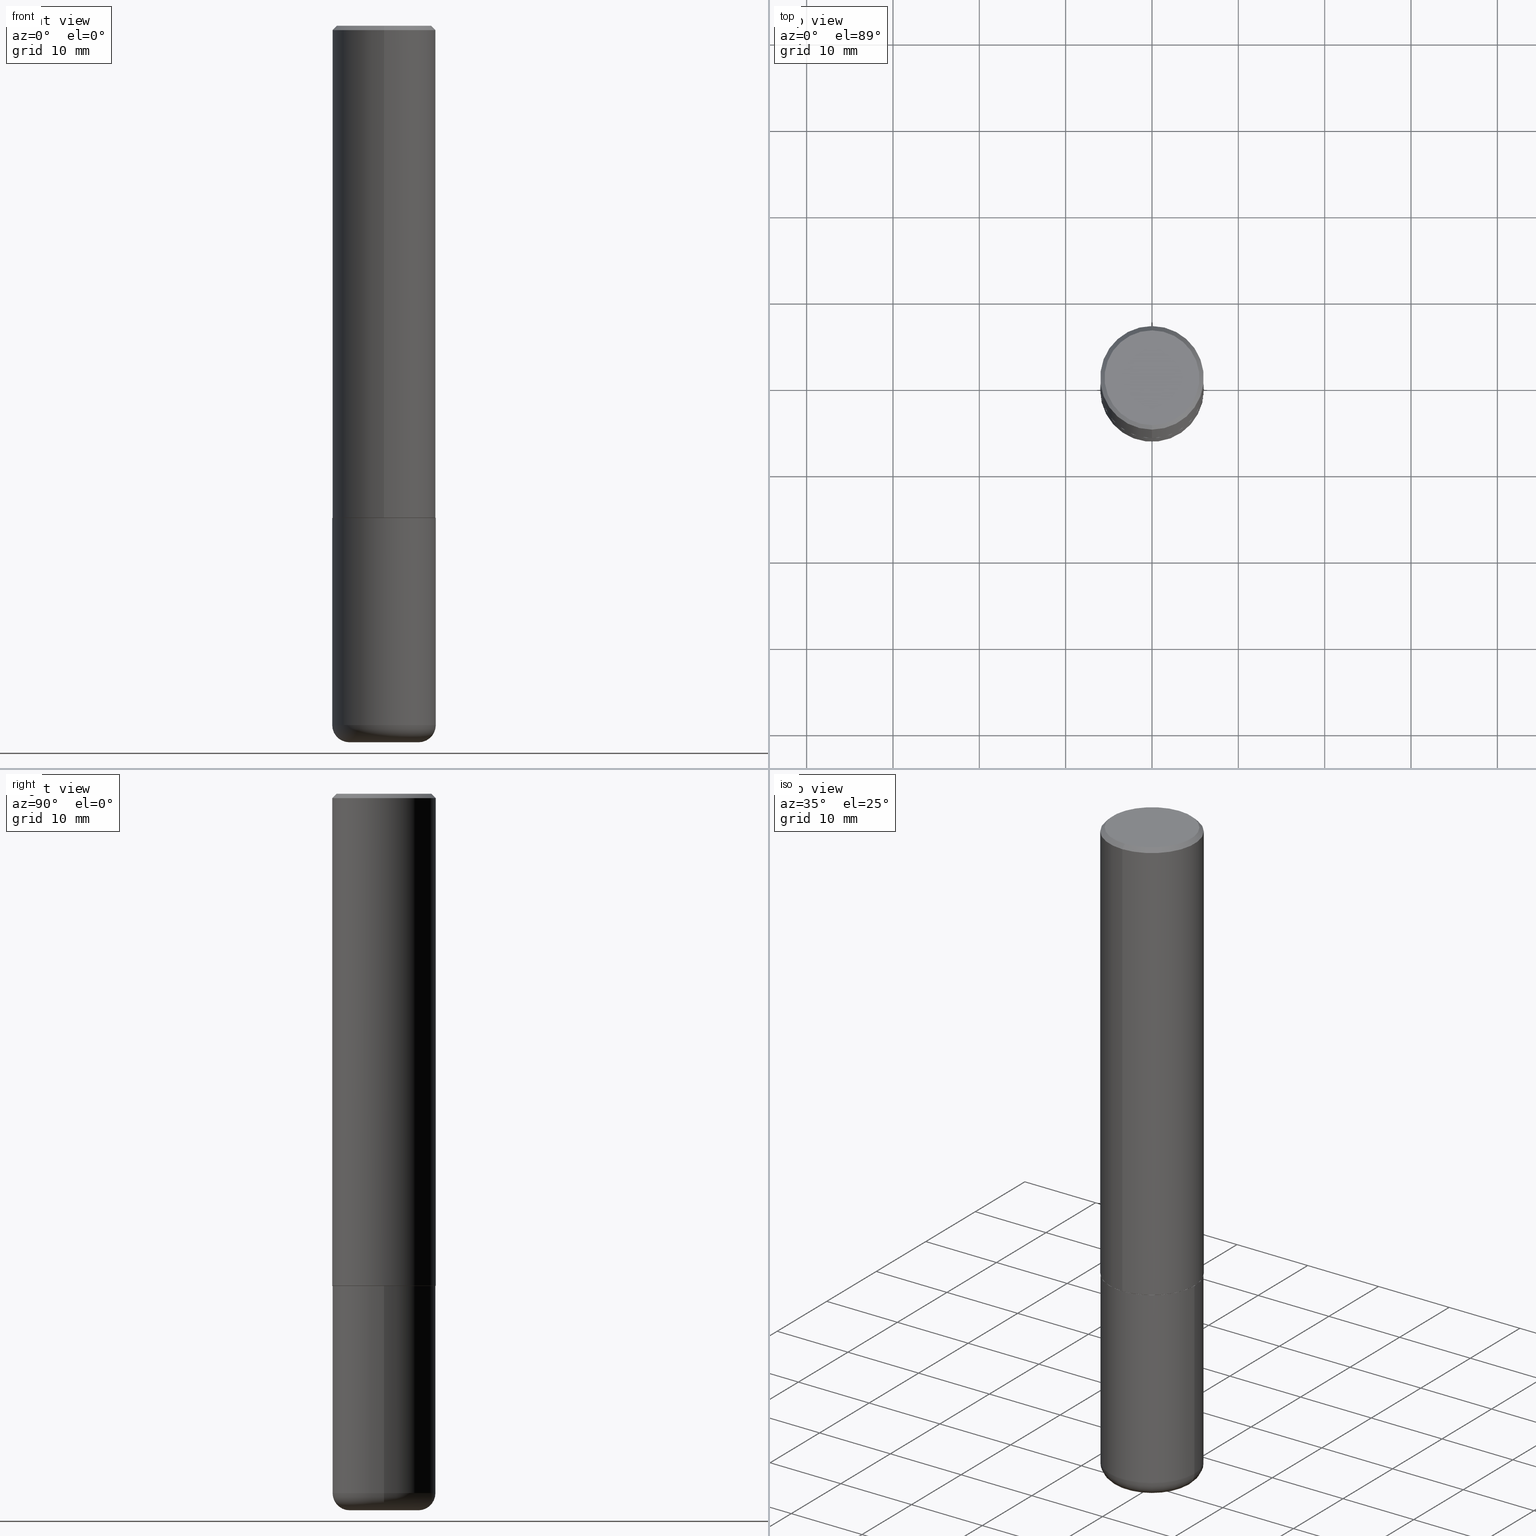
[diagram: canonical four-view strip — front | top / right | iso, engineering-drawing reading convention]
A machine part, canonical four-view strip (front | top / right | iso — engineering-drawing reading convention). The complete STEP part file that produces these views, byte-faithful:
ISO-10303-21;
HEADER;
FILE_DESCRIPTION (( 'STEP AP203' ),
    '1' );
FILE_NAME ('47168.STEP',
    '2024-03-06T00:59:04',
    ( '' ),
    ( '' ),
    'SwSTEP 2.0',
    'SolidWorks 2023',
    '' );
FILE_SCHEMA (( 'CONFIG_CONTROL_DESIGN' ));
ENDSEC;

DATA;
#1 = CARTESIAN_POINT ( 'NONE',  ( -1.649375784469443080E-15, -0.2362000000000081257, -2.243099999999999206 ) ) ;
#2 = APPROVAL_DATE_TIME ( #292, #88 ) ;
#3 = DIRECTION ( 'NONE',  ( -6.982962677686265922E-15, -1.000000000000000000, 3.484499991918702719E-15 ) ) ;
#4 = APPROVAL_STATUS ( 'not_yet_approved' ) ;
#5 = CIRCLE ( 'NONE', #396, 0.07870000000000021423 ) ;
#6 = CARTESIAN_POINT ( 'NONE',  ( 0.2362000000000001043, -1.278370977404028805E-14, -3.189000000000000501 ) ) ;
#7 = ADVANCED_FACE ( 'NONE', ( #27 ), #319, .T. ) ;
#8 = DIRECTION ( 'NONE',  ( -6.982962677686265922E-15, -1.000000000000000000, 3.494732472144603410E-15 ) ) ;
#9 = UNCERTAINTY_MEASURE_WITH_UNIT (LENGTH_MEASURE( 1.000000000000000082E-05 ), #128, 'distance_accuracy_value', 'NONE');
#10 = CARTESIAN_POINT ( 'NONE',  ( 7.798600022924401307E-29, -1.113433398957079310E-14, -3.189000000000000501 ) ) ;
#11 = CLOSED_SHELL ( 'NONE', ( #34, #198, #164, #334, #170, #318 ) ) ;
#12 = FACE_OUTER_BOUND ( 'NONE', #316, .T. ) ;
#13 = DIRECTION ( 'NONE',  ( -2.443198551934710321E-29, 3.494732472144603410E-15, 1.000000000000000000 ) ) ;
#14 = ORIENTED_EDGE ( 'NONE', *, *, #363, .F. ) ;
#15 = CARTESIAN_POINT ( 'NONE',  ( 7.798600022924401307E-29, -1.113433398957079310E-14, -3.189000000000000501 ) ) ;
#16 = CARTESIAN_POINT ( 'NONE',  ( 7.991058417971172834E-29, -1.140911357093774960E-14, -3.267700000000000937 ) ) ;
#17 = EDGE_CURVE ( 'NONE', #216, #379, #145, .T. ) ;
#18 = CIRCLE ( 'NONE', #352, 0.1575000000000000011 ) ;
#19 = CONICAL_SURFACE ( 'NONE', #127, 0.2361999999999999933, 0.7853981633974463916 ) ;
#20 = DIRECTION ( 'NONE',  ( -2.443198551934710321E-29, 3.494732472144603410E-15, 1.000000000000000000 ) ) ;
#21 = CARTESIAN_POINT ( 'NONE',  ( -1.551844647095920733E-15, -0.2162000000000002808, 4.617366936805109079E-16 ) ) ;
#22 = EDGE_LOOP ( 'NONE', ( #107, #225, #24, #414 ) ) ;
#23 = DIRECTION ( 'NONE',  ( 2.443198551934710321E-29, -3.494732472144603016E-15, -1.000000000000000000 ) ) ;
#24 = ORIENTED_EDGE ( 'NONE', *, *, #138, .T. ) ;
#25 = AXIS2_PLACEMENT_3D ( 'NONE', #298, #360, #137 ) ;
#26 = DESIGN_CONTEXT ( 'detailed design', #407, 'design' ) ;
#27 = FACE_OUTER_BOUND ( 'NONE', #163, .T. ) ;
#28 = DIRECTION ( 'NONE',  ( -2.443198551934710321E-29, 3.494732472144603016E-15, 1.000000000000000000 ) ) ;
#29 = PRODUCT ( '47168', '47168', '', ( #309 ) ) ;
#30 = ORIENTED_EDGE ( 'NONE', *, *, #418, .F. ) ;
#31 = LINE ( 'NONE', #284, #376 ) ;
#32 = ADVANCED_BREP_SHAPE_REPRESENTATION ( '47168', ( #344, #204, #44 ), #342 ) ;
#33 = VERTEX_POINT ( 'NONE', #291 ) ;
#34 = ADVANCED_FACE ( 'NONE', ( #98 ), #203, .T. ) ;
#35 = AXIS2_PLACEMENT_3D ( 'NONE', #16, #308, #302 ) ;
#36 = ORIENTED_EDGE ( 'NONE', *, *, #242, .T. ) ;
#37 = LINE ( 'NONE', #264, #305 ) ;
#38 = PERSON_AND_ORGANIZATION ( #162, #95 ) ;
#39 = LINE ( 'NONE', #233, #415 ) ;
#40 = DIRECTION ( 'NONE',  ( -2.443198551934710321E-29, 3.494732472144603410E-15, 1.000000000000000000 ) ) ;
#41 = CARTESIAN_POINT ( 'NONE',  ( 7.798600022924401307E-29, -1.113433398957079310E-14, -3.189000000000000501 ) ) ;
#42 = CARTESIAN_POINT ( 'NONE',  ( 5.480338671844748839E-29, -7.839034408267561952E-15, -2.243100000000000094 ) ) ;
#43 = CONICAL_SURFACE ( 'NONE', #260, 0.2352000000000000202, 0.7853981633975336552 ) ;
#44 = AXIS2_PLACEMENT_3D ( 'NONE', #117, #256, #347 ) ;
#45 = PLANE ( 'NONE',  #87 ) ;
#46 = CARTESIAN_POINT ( 'NONE',  ( -0.2362000000000001043, -9.456032047705438285E-15, -3.189000000000000501 ) ) ;
#47 = CARTESIAN_POINT ( 'NONE',  ( 0.000000000000000000, 0.000000000000000000, 0.000000000000000000 ) ) ;
#48 = VECTOR ( 'NONE', #131, 39.37007874015748143 ) ;
#49 = CC_DESIGN_SECURITY_CLASSIFICATION ( #255, ( #71 ) ) ;
#50 = APPLICATION_PROTOCOL_DEFINITION ( 'international standard', 'config_control_design', 1994, #388 ) ;
#51 = ORIENTED_EDGE ( 'NONE', *, *, #60, .F. ) ;
#52 = ORIENTED_EDGE ( 'NONE', *, *, #249, .T. ) ;
#53 = CC_DESIGN_PERSON_AND_ORGANIZATION_ASSIGNMENT ( #38, #202, ( #71 ) ) ;
#54 = FACE_OUTER_BOUND ( 'NONE', #121, .T. ) ;
#55 = VERTEX_POINT ( 'NONE', #6 ) ;
#56 = AXIS2_PLACEMENT_3D ( 'NONE', #176, #210, #371 ) ;
#57 = CALENDAR_DATE ( 2024, 5, 3 ) ;
#58 = VERTEX_POINT ( 'NONE', #362 ) ;
#59 =( NAMED_UNIT ( * ) PLANE_ANGLE_UNIT ( ) SI_UNIT ( $, .RADIAN. ) );
#60 = EDGE_CURVE ( 'NONE', #290, #119, #37, .T. ) ;
#61 = ORIENTED_EDGE ( 'NONE', *, *, #345, .F. ) ;
#62 = DATE_TIME_ROLE ( 'classification_date' ) ;
#63 = EDGE_LOOP ( 'NONE', ( #384, #190 ) ) ;
#64 = CIRCLE ( 'NONE', #240, 0.2352000000000000202 ) ;
#65 = DIRECTION ( 'NONE',  ( -2.445468806185136597E-29, 3.491481338843145583E-15, 1.000000000000000000 ) ) ;
#66 = EDGE_CURVE ( 'NONE', #290, #55, #331, .T. ) ;
#67 = CARTESIAN_POINT ( 'NONE',  ( -1.649375784469496920E-15, -0.2362000000000001321, 8.254558099205557624E-16 ) ) ;
#68 = DIRECTION ( 'NONE',  ( -2.445468806185136877E-29, 3.491481338843145188E-15, 1.000000000000000000 ) ) ;
#69 = PERSON_AND_ORGANIZATION_ROLE ( 'classification_officer' ) ;
#70 = AXIS2_PLACEMENT_3D ( 'NONE', #258, #325, #166 ) ;
#71 = PRODUCT_DEFINITION_FORMATION_WITH_SPECIFIED_SOURCE ( 'ANY', '', #29, .NOT_KNOWN. ) ;
#72 = DIRECTION ( 'NONE',  ( -2.443198551934710321E-29, 3.494732472144603410E-15, 1.000000000000000000 ) ) ;
#73 = EDGE_CURVE ( 'NONE', #368, #250, #338, .T. ) ;
#74 = DIRECTION ( 'NONE',  ( 1.000000000000000000, -6.982962677686268288E-15, 0.000000000000000000 ) ) ;
#75 = ORIENTED_EDGE ( 'NONE', *, *, #17, .F. ) ;
#76 = DIRECTION ( 'NONE',  ( -1.000000000000000000, 7.105427357600997914E-15, 0.000000000000000000 ) ) ;
#77 = AXIS2_PLACEMENT_3D ( 'NONE', #114, #300, #211 ) ;
#78 = EDGE_CURVE ( 'NONE', #238, #119, #111, .T. ) ;
#79 = DIRECTION ( 'NONE',  ( -2.443198551934710321E-29, 3.494732472144603410E-15, 1.000000000000000000 ) ) ;
#80 = CARTESIAN_POINT ( 'NONE',  ( 1.649375784469496525E-15, 0.2361999999999999378, -0.02000000000000091288 ) ) ;
#81 = DIRECTION ( 'NONE',  ( 1.000000000000000000, -6.982962677686266711E-15, 4.883557194083113462E-29 ) ) ;
#82 = ADVANCED_FACE ( 'NONE', ( #266 ), #96, .T. ) ;
#83 = ORIENTED_EDGE ( 'NONE', *, *, #249, .F. ) ;
#84 = DIRECTION ( 'NONE',  ( 1.000000000000000000, -6.982962677686261977E-15, 0.000000000000000000 ) ) ;
#85 = ORIENTED_EDGE ( 'NONE', *, *, #259, .T. ) ;
#86 = VERTEX_POINT ( 'NONE', #1 ) ;
#87 = AXIS2_PLACEMENT_3D ( 'NONE', #113, #343, #243 ) ;
#88 = APPROVAL ( #4, 'UNSPECIFIED' ) ;
#89 = DIRECTION ( 'NONE',  ( 4.937700262164537787E-15, 0.7071067811865436870, -0.7071067811865513475 ) ) ;
#90 = EDGE_LOOP ( 'NONE', ( #61, #75, #193, #406 ) ) ;
#91 = CARTESIAN_POINT ( 'NONE',  ( 4.886397103869442398E-31, -6.989464944289237832E-17, -0.02000000000000009062 ) ) ;
#92 = ORIENTED_EDGE ( 'NONE', *, *, #60, .T. ) ;
#93 = DIRECTION ( 'NONE',  ( -2.445468806185136877E-29, 3.491481338843145188E-15, 1.000000000000000000 ) ) ;
#94 = AXIS2_PLACEMENT_3D ( 'NONE', #270, #181, #74 ) ;
#95 = ORGANIZATION ( 'UNSPECIFIED', 'UNSPECIFIED', '' ) ;
#96 = CYLINDRICAL_SURFACE ( 'NONE', #25, 0.2362000000000001321 ) ;
#97 = PRODUCT_RELATED_PRODUCT_CATEGORY ( 'detail', '', ( #29 ) ) ;
#98 = FACE_OUTER_BOUND ( 'NONE', #218, .T. ) ;
#99 = PERSON_AND_ORGANIZATION ( #162, #95 ) ;
#100 = DIRECTION ( 'NONE',  ( -2.445468806185136597E-29, 3.491481338843145583E-15, 1.000000000000000000 ) ) ;
#101 = DIMENSIONAL_EXPONENTS ( 1.000000000000000000, 0.000000000000000000, 0.000000000000000000, 0.000000000000000000, 0.000000000000000000, 0.000000000000000000, 0.000000000000000000 ) ;
#102 = EDGE_CURVE ( 'NONE', #285, #86, #335, .T. ) ;
#103 = TOROIDAL_SURFACE ( 'NONE', #174, 0.1575000000000000011, 0.07870000000000022811 ) ;
#104 = LOCAL_TIME ( 19, 59, 4.000000000000000000, #389 ) ;
#105 = CARTESIAN_POINT ( 'NONE',  ( -0.2362000000000000766, -7.806481689168991326E-15, -2.244100000000000428 ) ) ;
#106 = CARTESIAN_POINT ( 'NONE',  ( -1.620449627073635079E-15, -0.2362000000000000766, -0.01999999999999926489 ) ) ;
#107 = ORIENTED_EDGE ( 'NONE', *, *, #373, .F. ) ;
#108 = CARTESIAN_POINT ( 'NONE',  ( -1.642392821791755093E-15, -0.2352000000000078750, -2.244099999999999540 ) ) ;
#109 = EDGE_CURVE ( 'NONE', #354, #129, #39, .T. ) ;
#110 = LINE ( 'NONE', #224, #152 ) ;
#111 = CIRCLE ( 'NONE', #70, 0.2362000000000000210 ) ;
#112 = CC_DESIGN_APPROVAL ( #310, ( #116 ) ) ;
#113 = CARTESIAN_POINT ( 'NONE',  ( 5.482781870396684000E-29, -7.842529140739704038E-15, -2.244100000000000428 ) ) ;
#114 = CARTESIAN_POINT ( 'NONE',  ( 4.886397103869442398E-31, -6.989464944289237832E-17, -0.02000000000000009062 ) ) ;
#115 = ORIENTED_EDGE ( 'NONE', *, *, #142, .F. ) ;
#116 = PRODUCT_DEFINITION ( 'UNKNOWN', '', #71, #26 ) ;
#117 = CARTESIAN_POINT ( 'NONE',  ( 0.000000000000000000, 0.000000000000000000, 0.000000000000000000 ) ) ;
#118 = CIRCLE ( 'NONE', #222, 0.2162000000000002808 ) ;
#119 = VERTEX_POINT ( 'NONE', #105 ) ;
#120 =( NAMED_UNIT ( * ) SI_UNIT ( $, .STERADIAN. ) SOLID_ANGLE_UNIT ( ) );
#121 = EDGE_LOOP ( 'NONE', ( #411, #36 ) ) ;
#122 = CARTESIAN_POINT ( 'NONE',  ( 7.991058417971172834E-29, -1.140911357093774960E-14, -3.267700000000000937 ) ) ;
#123 = CARTESIAN_POINT ( 'NONE',  ( 7.178715118017931868E-45, -1.026837905226585320E-30, -2.938244667971532280E-16 ) ) ;
#124 = APPROVAL_DATE_TIME ( #219, #310 ) ;
#125 = EDGE_LOOP ( 'NONE', ( #51, #194, #223, #177 ) ) ;
#126 = AXIS2_PLACEMENT_3D ( 'NONE', #228, #199, #327 ) ;
#127 = AXIS2_PLACEMENT_3D ( 'NONE', #91, #320, #184 ) ;
#128 =( CONVERSION_BASED_UNIT ( 'INCH', #188 ) LENGTH_UNIT ( ) NAMED_UNIT ( #101 ) );
#129 = VERTEX_POINT ( 'NONE', #262 ) ;
#130 = APPROVAL_ROLE ( '' ) ;
#131 = DIRECTION ( 'NONE',  ( -4.937700262164969294E-15, -0.7071067811866054154, 0.7071067811864896191 ) ) ;
#132 = CC_DESIGN_PERSON_AND_ORGANIZATION_ASSIGNMENT ( #230, #171, ( #71 ) ) ;
#133 = FACE_OUTER_BOUND ( 'NONE', #257, .T. ) ;
#134 = APPROVAL_PERSON_ORGANIZATION ( #159, #310, #280 ) ;
#135 = PERSON_AND_ORGANIZATION ( #162, #95 ) ;
#136 = DIRECTION ( 'NONE',  ( 5.024295867788490741E-15, 0.7071067811866103003, 0.7071067811864847341 ) ) ;
#137 = DIRECTION ( 'NONE',  ( -6.982962677686265922E-15, -1.000000000000000000, 3.494732472144603410E-15 ) ) ;
#138 = EDGE_CURVE ( 'NONE', #86, #368, #395, .T. ) ;
#139 = PLANE ( 'NONE',  #126 ) ;
#140 = AXIS2_PLACEMENT_3D ( 'NONE', #144, #79, #372 ) ;
#141 = PLANE ( 'NONE',  #296 ) ;
#142 = EDGE_CURVE ( 'NONE', #55, #238, #333, .T. ) ;
#143 = CARTESIAN_POINT ( 'NONE',  ( 1.579546157692634608E-15, 0.2162000000000002808, -1.049385627274817561E-15 ) ) ;
#144 = CARTESIAN_POINT ( 'NONE',  ( 5.482781870396684000E-29, -7.842529140739704038E-15, -2.244100000000000428 ) ) ;
#145 = CIRCLE ( 'NONE', #200, 0.2162000000000002808 ) ;
#146 = DIRECTION ( 'NONE',  ( 1.000000000000000000, -6.982962677686276177E-15, 0.000000000000000000 ) ) ;
#147 = AXIS2_PLACEMENT_3D ( 'NONE', #42, #271, #369 ) ;
#148 = FACE_OUTER_BOUND ( 'NONE', #312, .T. ) ;
#149 = EDGE_CURVE ( 'NONE', #55, #290, #306, .T. ) ;
#150 = EDGE_LOOP ( 'NONE', ( #244, #254 ) ) ;
#151 = APPROVAL_STATUS ( 'not_yet_approved' ) ;
#152 = VECTOR ( 'NONE', #28, 39.37007874015748143 ) ;
#153 = ORIENTED_EDGE ( 'NONE', *, *, #155, .T. ) ;
#154 = APPLICATION_PROTOCOL_DEFINITION ( 'international standard', 'config_control_design', 1994, #407 ) ;
#155 = EDGE_CURVE ( 'NONE', #285, #354, #64, .T. ) ;
#156 = DIRECTION ( 'NONE',  ( -2.443198551934710321E-29, 3.494732472144603410E-15, 1.000000000000000000 ) ) ;
#157 = PERSON_AND_ORGANIZATION ( #162, #95 ) ;
#158 = ORIENTED_EDGE ( 'NONE', *, *, #78, .F. ) ;
#159 = PERSON_AND_ORGANIZATION ( #162, #95 ) ;
#160 = ORIENTED_EDGE ( 'NONE', *, *, #268, .T. ) ;
#161 = AXIS2_PLACEMENT_3D ( 'NONE', #339, #13, #206 ) ;
#162 = PERSON ( 'UNSPECIFIED', 'UNSPECIFIED', 'UNSPECIFIED', ('UNSPECIFIED'), ('UNSPECIFIED'), ('UNSPECIFIED') ) ;
#163 = EDGE_LOOP ( 'NONE', ( #52, #350, #186, #275 ) ) ;
#164 = ADVANCED_FACE ( 'NONE', ( #391 ), #139, .F. ) ;
#165 = FACE_OUTER_BOUND ( 'NONE', #282, .T. ) ;
#166 = DIRECTION ( 'NONE',  ( 1.000000000000000000, -6.982962677686268288E-15, 0.000000000000000000 ) ) ;
#167 = CIRCLE ( 'NONE', #56, 0.2352000000000000202 ) ;
#168 = SECURITY_CLASSIFICATION_LEVEL ( 'unclassified' ) ;
#169 = CARTESIAN_POINT ( 'NONE',  ( 7.798600022924401307E-29, -1.113433398957079310E-14, -3.189000000000000501 ) ) ;
#170 = ADVANCED_FACE ( 'NONE', ( #329 ), #189, .T. ) ;
#171 = PERSON_AND_ORGANIZATION_ROLE ( 'creator' ) ;
#172 = DIRECTION ( 'NONE',  ( 1.000000000000000000, -6.982962677686266711E-15, 4.876176775795936353E-29 ) ) ;
#173 = DIRECTION ( 'NONE',  ( -2.445468806185136597E-29, 3.491481338843145583E-15, 1.000000000000000000 ) ) ;
#174 = AXIS2_PLACEMENT_3D ( 'NONE', #15, #173, #81 ) ;
#175 = AXIS2_PLACEMENT_3D ( 'NONE', #416, #23, #410 ) ;
#176 = CARTESIAN_POINT ( 'NONE',  ( 5.482781870396684000E-29, -7.842529140739704038E-15, -2.244100000000000428 ) ) ;
#177 = ORIENTED_EDGE ( 'NONE', *, *, #359, .F. ) ;
#178 = APPROVAL ( #261, 'UNSPECIFIED' ) ;
#179 = CARTESIAN_POINT ( 'NONE',  ( 0.2362000000000000210, -9.484609056967400443E-15, -2.244100000000000428 ) ) ;
#180 = DIRECTION ( 'NONE',  ( -1.000000000000000000, 6.982962677686265922E-15, -4.876176775795935793E-29 ) ) ;
#181 = DIRECTION ( 'NONE',  ( -2.445468806185136597E-29, 3.491481338843145583E-15, 1.000000000000000000 ) ) ;
#182 = ADVANCED_FACE ( 'NONE', ( #165 ), #43, .T. ) ;
#183 = ORIENTED_EDGE ( 'NONE', *, *, #109, .F. ) ;
#184 = DIRECTION ( 'NONE',  ( 6.982962677686265922E-15, 1.000000000000000000, -3.487819265831411744E-15 ) ) ;
#185 = PERSON_AND_ORGANIZATION ( #162, #95 ) ;
#186 = ORIENTED_EDGE ( 'NONE', *, *, #73, .F. ) ;
#187 = CC_DESIGN_PERSON_AND_ORGANIZATION_ASSIGNMENT ( #185, #311, ( #29 ) ) ;
#188 = LENGTH_MEASURE_WITH_UNIT ( LENGTH_MEASURE( 0.02539999999999999897 ), #413 );
#189 = TOROIDAL_SURFACE ( 'NONE', #365, 0.1575000000000000011, 0.07870000000000022811 ) ;
#190 = ORIENTED_EDGE ( 'NONE', *, *, #268, .F. ) ;
#191 = DATE_AND_TIME ( #57, #409 ) ;
#192 = ORIENTED_EDGE ( 'NONE', *, *, #286, .T. ) ;
#193 = ORIENTED_EDGE ( 'NONE', *, *, #418, .T. ) ;
#194 = ORIENTED_EDGE ( 'NONE', *, *, #66, .T. ) ;
#195 = CC_DESIGN_APPROVAL ( #178, ( #255 ) ) ;
#196 = DIRECTION ( 'NONE',  ( 1.000000000000000000, -6.982962677686266711E-15, 4.883557194083113462E-29 ) ) ;
#197 = DIRECTION ( 'NONE',  ( -6.982962677686265922E-15, -1.000000000000000000, 3.484499991918702719E-15 ) ) ;
#198 = ADVANCED_FACE ( 'NONE', ( #133 ), #103, .T. ) ;
#199 = DIRECTION ( 'NONE',  ( 2.438088387897960049E-29, -3.491481338843145188E-15, -1.000000000000000000 ) ) ;
#200 = AXIS2_PLACEMENT_3D ( 'NONE', #123, #251, #8 ) ;
#201 = CIRCLE ( 'NONE', #273, 0.2362000000000002709 ) ;
#202 = PERSON_AND_ORGANIZATION_ROLE ( 'design_supplier' ) ;
#203 = CYLINDRICAL_SURFACE ( 'NONE', #383, 0.2361999999999999933 ) ;
#204 = MANIFOLD_SOLID_BREP ( 'Body-Move/Copy2[2]', #221 ) ;
#205 = CARTESIAN_POINT ( 'NONE',  ( 0.2361999999999999933, -1.649375784469496131E-15, 1.151752954443000088E-29 ) ) ;
#206 = DIRECTION ( 'NONE',  ( -6.982962677686265922E-15, -1.000000000000000000, 3.487819265831411744E-15 ) ) ;
#207 = ORIENTED_EDGE ( 'NONE', *, *, #242, .F. ) ;
#208 = CC_DESIGN_DATE_AND_TIME_ASSIGNMENT ( #191, #317, ( #116 ) ) ;
#209 = VECTOR ( 'NONE', #387, 39.37007874015748143 ) ;
#210 = DIRECTION ( 'NONE',  ( -2.443198551934710321E-29, 3.494732472144603410E-15, 1.000000000000000000 ) ) ;
#211 = DIRECTION ( 'NONE',  ( 6.982962677686265922E-15, 1.000000000000000000, -3.487819265831411744E-15 ) ) ;
#212 = EDGE_CURVE ( 'NONE', #250, #368, #267, .T. ) ;
#213 = CARTESIAN_POINT ( 'NONE',  ( 7.538501650987437905E-31, -2.274480841398118534E-14, -3.267700000000000937 ) ) ;
#214 = LINE ( 'NONE', #106, #229 ) ;
#215 = CIRCLE ( 'NONE', #35, 0.1575000000000000011 ) ;
#216 = VERTEX_POINT ( 'NONE', #143 ) ;
#217 = FACE_OUTER_BOUND ( 'NONE', #90, .T. ) ;
#218 = EDGE_LOOP ( 'NONE', ( #346, #92, #158, #115 ) ) ;
#219 = DATE_AND_TIME ( #380, #353 ) ;
#220 = ORIENTED_EDGE ( 'NONE', *, *, #345, .T. ) ;
#221 = CLOSED_SHELL ( 'NONE', ( #272, #7, #226, #392, #82, #182, #351, #404 ) ) ;
#222 = AXIS2_PLACEMENT_3D ( 'NONE', #341, #397, #276 ) ;
#223 = ORIENTED_EDGE ( 'NONE', *, *, #142, .T. ) ;
#224 = CARTESIAN_POINT ( 'NONE',  ( 1.678301941865357380E-15, 0.2362000000000001321, -8.254558099205557624E-16 ) ) ;
#225 = ORIENTED_EDGE ( 'NONE', *, *, #363, .T. ) ;
#226 = ADVANCED_FACE ( 'NONE', ( #148 ), #253, .T. ) ;
#227 = ORIENTED_EDGE ( 'NONE', *, *, #66, .F. ) ;
#228 = CARTESIAN_POINT ( 'NONE',  ( 5.487876547960065873E-29, -7.835233272497903917E-15, -2.244100000000000428 ) ) ;
#229 = VECTOR ( 'NONE', #367, 39.37007874015748143 ) ;
#230 = PERSON_AND_ORGANIZATION ( #162, #95 ) ;
#231 = CARTESIAN_POINT ( 'NONE',  ( -1.642392821791755093E-15, -0.2352000000000078750, -2.244099999999999540 ) ) ;
#232 = EDGE_CURVE ( 'NONE', #58, #290, #5, .T. ) ;
#233 = CARTESIAN_POINT ( 'NONE',  ( 1.671196514507810409E-15, 0.2351999999999921653, -2.244100000000000872 ) ) ;
#234 = APPROVAL_DATE_TIME ( #332, #178 ) ;
#235 = CARTESIAN_POINT ( 'NONE',  ( 0.000000000000000000, 0.000000000000000000, 0.000000000000000000 ) ) ;
#236 = DIRECTION ( 'NONE',  ( 1.000000000000000000, -6.982962677686265133E-15, 0.000000000000000000 ) ) ;
#237 = FACE_OUTER_BOUND ( 'NONE', #125, .T. ) ;
#238 = VERTEX_POINT ( 'NONE', #179 ) ;
#239 = DIRECTION ( 'NONE',  ( 1.000000000000000000, -6.982962677686266711E-15, 4.876176775795936353E-29 ) ) ;
#240 = AXIS2_PLACEMENT_3D ( 'NONE', #366, #40, #197 ) ;
#241 = CARTESIAN_POINT ( 'NONE',  ( -0.1575000000000000011, -1.001522918074863550E-14, -3.189000000000000501 ) ) ;
#242 = EDGE_CURVE ( 'NONE', #379, #216, #118, .T. ) ;
#243 = DIRECTION ( 'NONE',  ( -6.982962677686265922E-15, -1.000000000000000000, 3.494732472144603016E-15 ) ) ;
#244 = ORIENTED_EDGE ( 'NONE', *, *, #78, .T. ) ;
#245 = CARTESIAN_POINT ( 'NONE',  ( -1.620449627073635079E-15, -0.2362000000000000766, -0.01999999999999926489 ) ) ;
#246 = AXIS2_PLACEMENT_3D ( 'NONE', #295, #72, #364 ) ;
#247 = ORIENTED_EDGE ( 'NONE', *, *, #102, .T. ) ;
#248 = COORDINATED_UNIVERSAL_TIME_OFFSET ( 5, 0, .BEHIND. ) ;
#249 = EDGE_CURVE ( 'NONE', #86, #129, #370, .T. ) ;
#250 = VERTEX_POINT ( 'NONE', #80 ) ;
#251 = DIRECTION ( 'NONE',  ( -2.443198551934710321E-29, 3.494732472144603410E-15, 1.000000000000000000 ) ) ;
#252 = PERSON_AND_ORGANIZATION ( #162, #95 ) ;
#253 = CONICAL_SURFACE ( 'NONE', #77, 0.2361999999999999933, 0.7853981633974463916 ) ;
#254 = ORIENTED_EDGE ( 'NONE', *, *, #359, .T. ) ;
#255 = SECURITY_CLASSIFICATION ( '', '', #168 ) ;
#256 = DIRECTION ( 'NONE',  ( 0.000000000000000000, 0.000000000000000000, 1.000000000000000000 ) ) ;
#257 = EDGE_LOOP ( 'NONE', ( #85, #403, #381, #417 ) ) ;
#258 = CARTESIAN_POINT ( 'NONE',  ( 5.487876547960065873E-29, -7.835233272497903917E-15, -2.244100000000000428 ) ) ;
#259 = EDGE_CURVE ( 'NONE', #33, #58, #215, .T. ) ;
#260 = AXIS2_PLACEMENT_3D ( 'NONE', #358, #293, #3 ) ;
#261 = APPROVAL_STATUS ( 'not_yet_approved' ) ;
#262 = CARTESIAN_POINT ( 'NONE',  ( 1.678301941865385582E-15, 0.2361999999999924160, -2.243100000000000982 ) ) ;
#263 = CALENDAR_DATE ( 2024, 5, 3 ) ;
#264 = CARTESIAN_POINT ( 'NONE',  ( -0.2361999999999999933, 1.678301941865356591E-15, -1.161852468318208757E-29 ) ) ;
#265 = DATE_AND_TIME ( #263, #315 ) ;
#266 = FACE_OUTER_BOUND ( 'NONE', #22, .T. ) ;
#267 = CIRCLE ( 'NONE', #161, 0.2361999999999999933 ) ;
#268 = EDGE_CURVE ( 'NONE', #354, #285, #167, .T. ) ;
#269 = CYLINDRICAL_SURFACE ( 'NONE', #375, 0.2361999999999999933 ) ;
#270 = CARTESIAN_POINT ( 'NONE',  ( 5.487876547960065873E-29, -7.835233272497903917E-15, -2.244100000000000428 ) ) ;
#271 = DIRECTION ( 'NONE',  ( -2.443198551934710321E-29, 3.494732472144603410E-15, 1.000000000000000000 ) ) ;
#272 = ADVANCED_FACE ( 'NONE', ( #12 ), #322, .T. ) ;
#273 = AXIS2_PLACEMENT_3D ( 'NONE', #400, #20, #398 ) ;
#274 = DIRECTION ( 'NONE',  ( -6.982962677686266711E-15, -1.000000000000000000, 3.491481338843145583E-15 ) ) ;
#275 = ORIENTED_EDGE ( 'NONE', *, *, #138, .F. ) ;
#276 = DIRECTION ( 'NONE',  ( -6.982962677686265922E-15, -1.000000000000000000, 3.494732472144603410E-15 ) ) ;
#277 = EDGE_LOOP ( 'NONE', ( #323, #412, #192, #227 ) ) ;
#278 = CIRCLE ( 'NONE', #94, 0.2362000000000000210 ) ;
#279 = CC_DESIGN_PERSON_AND_ORGANIZATION_ASSIGNMENT ( #252, #314, ( #116 ) ) ;
#280 = APPROVAL_ROLE ( '' ) ;
#281 = CC_DESIGN_APPROVAL ( #88, ( #71 ) ) ;
#282 = EDGE_LOOP ( 'NONE', ( #183, #160, #247, #14 ) ) ;
#283 = DIRECTION ( 'NONE',  ( -6.982962677686265922E-15, -1.000000000000000000, 3.494732472144603410E-15 ) ) ;
#284 = CARTESIAN_POINT ( 'NONE',  ( 1.649375784469496525E-15, 0.2361999999999999378, -0.02000000000000091288 ) ) ;
#285 = VERTEX_POINT ( 'NONE', #108 ) ;
#286 = EDGE_CURVE ( 'NONE', #33, #55, #313, .T. ) ;
#287 = PLANE ( 'NONE',  #175 ) ;
#288 = VECTOR ( 'NONE', #93, 39.37007874015748143 ) ;
#289 = PRODUCT_DEFINITION_SHAPE ( 'NONE', 'NONE',  #116 ) ;
#290 = VERTEX_POINT ( 'NONE', #46 ) ;
#291 = CARTESIAN_POINT ( 'NONE',  ( 0.1575000000000000011, -1.250893019267333471E-14, -3.267700000000000937 ) ) ;
#292 = DATE_AND_TIME ( #328, #104 ) ;
#293 = DIRECTION ( 'NONE',  ( -2.443198551934710321E-29, 3.494732472144603410E-15, 1.000000000000000000 ) ) ;
#294 = COORDINATED_UNIVERSAL_TIME_OFFSET ( 5, 0, .BEHIND. ) ;
#295 = CARTESIAN_POINT ( 'NONE',  ( 4.886397103869442398E-31, -6.989464944289237832E-17, -0.02000000000000009062 ) ) ;
#296 = AXIS2_PLACEMENT_3D ( 'NONE', #213, #374, #180 ) ;
#297 = COORDINATED_UNIVERSAL_TIME_OFFSET ( 5, 0, .BEHIND. ) ;
#298 = CARTESIAN_POINT ( 'NONE',  ( 0.000000000000000000, 0.000000000000000000, 0.000000000000000000 ) ) ;
#299 = DIRECTION ( 'NONE',  ( 1.000000000000000000, -6.982962677686265133E-15, 0.000000000000000000 ) ) ;
#300 = DIRECTION ( 'NONE',  ( 2.443198551934710321E-29, -3.494732472144603410E-15, -1.000000000000000000 ) ) ;
#301 = APPROVAL_PERSON_ORGANIZATION ( #157, #88, #130 ) ;
#302 = DIRECTION ( 'NONE',  ( 1.000000000000000000, -6.982962677686261977E-15, 0.000000000000000000 ) ) ;
#303 = FACE_OUTER_BOUND ( 'NONE', #355, .T. ) ;
#304 = DIRECTION ( 'NONE',  ( -2.445468806185136597E-29, 3.491481338843145583E-15, 1.000000000000000000 ) ) ;
#305 = VECTOR ( 'NONE', #68, 39.37007874015748143 ) ;
#306 = CIRCLE ( 'NONE', #401, 0.2361999999999999933 ) ;
#307 = APPROVAL_PERSON_ORGANIZATION ( #135, #178, #393 ) ;
#308 = DIRECTION ( 'NONE',  ( -2.445468806185136597E-29, 3.491481338843145583E-15, 1.000000000000000000 ) ) ;
#309 = MECHANICAL_CONTEXT ( 'NONE', #388, 'mechanical' ) ;
#310 = APPROVAL ( #151, 'UNSPECIFIED' ) ;
#311 = PERSON_AND_ORGANIZATION_ROLE ( 'design_owner' ) ;
#312 = EDGE_LOOP ( 'NONE', ( #207, #220, #348, #30 ) ) ;
#313 = CIRCLE ( 'NONE', #357, 0.07870000000000021423 ) ;
#314 = PERSON_AND_ORGANIZATION_ROLE ( 'creator' ) ;
#315 = LOCAL_TIME ( 19, 59, 4.000000000000000000, #294 ) ;
#316 = EDGE_LOOP ( 'NONE', ( #153, #337, #83, #356 ) ) ;
#317 = DATE_TIME_ROLE ( 'creation_date' ) ;
#318 = ADVANCED_FACE ( 'NONE', ( #303 ), #141, .T. ) ;
#319 = CYLINDRICAL_SURFACE ( 'NONE', #330, 0.2362000000000001321 ) ;
#320 = DIRECTION ( 'NONE',  ( 2.443198551934710321E-29, -3.494732472144603410E-15, -1.000000000000000000 ) ) ;
#321 = ORIENTED_EDGE ( 'NONE', *, *, #386, .F. ) ;
#322 = CONICAL_SURFACE ( 'NONE', #140, 0.2352000000000000202, 0.7853981633975336552 ) ;
#323 = ORIENTED_EDGE ( 'NONE', *, *, #232, .F. ) ;
#324 = CALENDAR_DATE ( 2024, 5, 3 ) ;
#325 = DIRECTION ( 'NONE',  ( -2.445468806185136597E-29, 3.491481338843145583E-15, 1.000000000000000000 ) ) ;
#326 = CC_DESIGN_DATE_AND_TIME_ASSIGNMENT ( #265, #62, ( #255 ) ) ;
#327 = DIRECTION ( 'NONE',  ( -1.000000000000000000, 6.982962677686265922E-15, -4.876176775795935793E-29 ) ) ;
#328 = CALENDAR_DATE ( 2024, 5, 3 ) ;
#329 = FACE_OUTER_BOUND ( 'NONE', #277, .T. ) ;
#330 = AXIS2_PLACEMENT_3D ( 'NONE', #382, #156, #283 ) ;
#331 = CIRCLE ( 'NONE', #408, 0.2361999999999999933 ) ;
#332 = DATE_AND_TIME ( #324, #377 ) ;
#333 = LINE ( 'NONE', #205, #288 ) ;
#334 = ADVANCED_FACE ( 'NONE', ( #237 ), #269, .T. ) ;
#335 = LINE ( 'NONE', #231, #48 ) ;
#336 = DIRECTION ( 'NONE',  ( 7.105427357601001859E-15, 1.000000000000000000, -3.491481338843145583E-15 ) ) ;
#337 = ORIENTED_EDGE ( 'NONE', *, *, #109, .T. ) ;
#338 = CIRCLE ( 'NONE', #246, 0.2361999999999999933 ) ;
#339 = CARTESIAN_POINT ( 'NONE',  ( 4.886397103869442398E-31, -6.989464944289237832E-17, -0.02000000000000009062 ) ) ;
#340 = CARTESIAN_POINT ( 'NONE',  ( 0.1575000000000000011, -1.223415061130637979E-14, -3.189000000000000501 ) ) ;
#341 = CARTESIAN_POINT ( 'NONE',  ( 7.178715118017931868E-45, -1.026837905226585320E-30, -2.938244667971532280E-16 ) ) ;
#342 =( GEOMETRIC_REPRESENTATION_CONTEXT ( 3 ) GLOBAL_UNCERTAINTY_ASSIGNED_CONTEXT ( ( #9 ) ) GLOBAL_UNIT_ASSIGNED_CONTEXT ( ( #128, #59, #120 ) ) REPRESENTATION_CONTEXT ( 'NONE', 'WORKASPACE' ) );
#343 = DIRECTION ( 'NONE',  ( -2.443198551934710321E-29, 3.494732472144603016E-15, 1.000000000000000000 ) ) ;
#344 = MANIFOLD_SOLID_BREP ( 'Body-Move/Copy2[1]', #11 ) ;
#345 = EDGE_CURVE ( 'NONE', #379, #368, #214, .T. ) ;
#346 = ORIENTED_EDGE ( 'NONE', *, *, #149, .T. ) ;
#347 = DIRECTION ( 'NONE',  ( 1.000000000000000000, 0.000000000000000000, 0.000000000000000000 ) ) ;
#348 = ORIENTED_EDGE ( 'NONE', *, *, #73, .T. ) ;
#349 = COORDINATED_UNIVERSAL_TIME_OFFSET ( 5, 0, .BEHIND. ) ;
#350 = ORIENTED_EDGE ( 'NONE', *, *, #373, .T. ) ;
#351 = ADVANCED_FACE ( 'NONE', ( #402 ), #45, .F. ) ;
#352 = AXIS2_PLACEMENT_3D ( 'NONE', #122, #378, #84 ) ;
#353 = LOCAL_TIME ( 19, 59, 4.000000000000000000, #248 ) ;
#354 = VERTEX_POINT ( 'NONE', #405 ) ;
#355 = EDGE_LOOP ( 'NONE', ( #385, #321 ) ) ;
#356 = ORIENTED_EDGE ( 'NONE', *, *, #102, .F. ) ;
#357 = AXIS2_PLACEMENT_3D ( 'NONE', #340, #274, #146 ) ;
#358 = CARTESIAN_POINT ( 'NONE',  ( 5.482781870396684000E-29, -7.842529140739704038E-15, -2.244100000000000428 ) ) ;
#359 = EDGE_CURVE ( 'NONE', #119, #238, #278, .T. ) ;
#360 = DIRECTION ( 'NONE',  ( -2.443198551934710321E-29, 3.494732472144603410E-15, 1.000000000000000000 ) ) ;
#361 = SHAPE_DEFINITION_REPRESENTATION ( #289, #32 ) ;
#362 = CARTESIAN_POINT ( 'NONE',  ( -0.1575000000000000011, -9.873020404910514350E-15, -3.267700000000000937 ) ) ;
#363 = EDGE_CURVE ( 'NONE', #129, #86, #201, .T. ) ;
#364 = DIRECTION ( 'NONE',  ( -6.982962677686265922E-15, -1.000000000000000000, 3.487819265831411744E-15 ) ) ;
#365 = AXIS2_PLACEMENT_3D ( 'NONE', #41, #65, #196 ) ;
#366 = CARTESIAN_POINT ( 'NONE',  ( 5.482781870396684000E-29, -7.842529140739704038E-15, -2.244100000000000428 ) ) ;
#367 = DIRECTION ( 'NONE',  ( -4.851104656540954020E-15, -0.7071067811865485719, -0.7071067811865464625 ) ) ;
#368 = VERTEX_POINT ( 'NONE', #245 ) ;
#369 = DIRECTION ( 'NONE',  ( -6.982962677686265922E-15, -1.000000000000000000, 3.469747663417773058E-15 ) ) ;
#370 = CIRCLE ( 'NONE', #147, 0.2362000000000002709 ) ;
#371 = DIRECTION ( 'NONE',  ( -6.982962677686265922E-15, -1.000000000000000000, 3.484499991918702719E-15 ) ) ;
#372 = DIRECTION ( 'NONE',  ( -6.982962677686265922E-15, -1.000000000000000000, 3.484499991918702719E-15 ) ) ;
#373 = EDGE_CURVE ( 'NONE', #129, #250, #110, .T. ) ;
#374 = DIRECTION ( 'NONE',  ( 2.438088387897960049E-29, -3.491481338843145188E-15, -1.000000000000000000 ) ) ;
#375 = AXIS2_PLACEMENT_3D ( 'NONE', #47, #304, #239 ) ;
#376 = VECTOR ( 'NONE', #89, 39.37007874015748143 ) ;
#377 = LOCAL_TIME ( 19, 59, 4.000000000000000000, #297 ) ;
#378 = DIRECTION ( 'NONE',  ( -2.445468806185136597E-29, 3.491481338843145583E-15, 1.000000000000000000 ) ) ;
#379 = VERTEX_POINT ( 'NONE', #21 ) ;
#380 = CALENDAR_DATE ( 2024, 5, 3 ) ;
#381 = ORIENTED_EDGE ( 'NONE', *, *, #149, .F. ) ;
#382 = CARTESIAN_POINT ( 'NONE',  ( 0.000000000000000000, 0.000000000000000000, 0.000000000000000000 ) ) ;
#383 = AXIS2_PLACEMENT_3D ( 'NONE', #235, #390, #172 ) ;
#384 = ORIENTED_EDGE ( 'NONE', *, *, #155, .F. ) ;
#385 = ORIENTED_EDGE ( 'NONE', *, *, #259, .F. ) ;
#386 = EDGE_CURVE ( 'NONE', #58, #33, #18, .T. ) ;
#387 = DIRECTION ( 'NONE',  ( -2.443198551934710321E-29, 3.494732472144603016E-15, 1.000000000000000000 ) ) ;
#388 = APPLICATION_CONTEXT ( 'configuration controlled 3d designs of mechanical parts and assemblies' ) ;
#389 = COORDINATED_UNIVERSAL_TIME_OFFSET ( 5, 0, .BEHIND. ) ;
#390 = DIRECTION ( 'NONE',  ( -2.445468806185136597E-29, 3.491481338843145583E-15, 1.000000000000000000 ) ) ;
#391 = FACE_OUTER_BOUND ( 'NONE', #150, .T. ) ;
#392 = ADVANCED_FACE ( 'NONE', ( #217 ), #19, .T. ) ;
#393 = APPROVAL_ROLE ( '' ) ;
#394 = DIRECTION ( 'NONE',  ( -2.445468806185136597E-29, 3.491481338843145583E-15, 1.000000000000000000 ) ) ;
#395 = LINE ( 'NONE', #67, #209 ) ;
#396 = AXIS2_PLACEMENT_3D ( 'NONE', #241, #336, #76 ) ;
#397 = DIRECTION ( 'NONE',  ( -2.443198551934710321E-29, 3.494732472144603410E-15, 1.000000000000000000 ) ) ;
#398 = DIRECTION ( 'NONE',  ( -6.982962677686265922E-15, -1.000000000000000000, 3.469747663417773058E-15 ) ) ;
#399 = CC_DESIGN_PERSON_AND_ORGANIZATION_ASSIGNMENT ( #99, #69, ( #255 ) ) ;
#400 = CARTESIAN_POINT ( 'NONE',  ( 5.480338671844748839E-29, -7.839034408267561952E-15, -2.243100000000000094 ) ) ;
#401 = AXIS2_PLACEMENT_3D ( 'NONE', #10, #394, #299 ) ;
#402 = FACE_OUTER_BOUND ( 'NONE', #63, .T. ) ;
#403 = ORIENTED_EDGE ( 'NONE', *, *, #232, .T. ) ;
#404 = ADVANCED_FACE ( 'NONE', ( #54 ), #287, .F. ) ;
#405 = CARTESIAN_POINT ( 'NONE',  ( 1.674749228186611702E-15, 0.2351999999999921653, -2.244100000000000872 ) ) ;
#406 = ORIENTED_EDGE ( 'NONE', *, *, #212, .T. ) ;
#407 = APPLICATION_CONTEXT ( 'configuration controlled 3d designs of mechanical parts and assemblies' ) ;
#408 = AXIS2_PLACEMENT_3D ( 'NONE', #169, #100, #236 ) ;
#409 = LOCAL_TIME ( 19, 59, 4.000000000000000000, #349 ) ;
#410 = DIRECTION ( 'NONE',  ( 6.982962677686265922E-15, 1.000000000000000000, -3.494732472144603016E-15 ) ) ;
#411 = ORIENTED_EDGE ( 'NONE', *, *, #17, .T. ) ;
#412 = ORIENTED_EDGE ( 'NONE', *, *, #386, .T. ) ;
#413 =( LENGTH_UNIT ( ) NAMED_UNIT ( * ) SI_UNIT ( $, .METRE. ) );
#414 = ORIENTED_EDGE ( 'NONE', *, *, #212, .F. ) ;
#415 = VECTOR ( 'NONE', #136, 39.37007874015748143 ) ;
#416 = CARTESIAN_POINT ( 'NONE',  ( 1.509716530915772690E-15, 0.2162000000000002808, -9.024733938762408486E-16 ) ) ;
#417 = ORIENTED_EDGE ( 'NONE', *, *, #286, .F. ) ;
#418 = EDGE_CURVE ( 'NONE', #216, #250, #31, .T. ) ;
ENDSEC;
END-ISO-10303-21;
